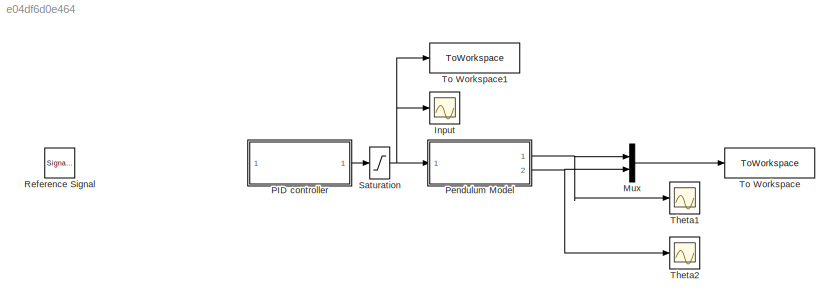
MODEL slx_e04df6d0e464
KIND model
CONFIG AbsTol = auto
CONFIG EnableMultiTasking = on
CONFIG FixedStep = 0.01
CONFIG MaxStep = auto
CONFIG MinStep = auto
CONFIG RelTol = 1e-3
CONFIG SampleTimeConstraint = Unconstrained
CONFIG SolverName = ode45
CONFIG StartTime = 0.0
CONFIG StopTime = 10
BLOCK [Scope] Input
  Floating = off
  NumInputPorts = 1
  Ports = [1]
  ScopeSpecificationString = Simulink.scopes.TimeScopeBlockCfg('CurrentConfiguration', extmgr.ConfigurationSet(extmgr.Configuration('Core','General UI',true),extmgr.Configuration('Core','Source UI',true),extmgr.Configuration('Sources','WiredSimulink',true,'DataLoggingSaveFormat','StructureWithTime','DataLoggingDecimation','1','DataLoggingDecimateData',true),extmgr.Configuration('Visuals','Time Domain',true,'SerializedDisplays...<+1642ch>
BLOCK [Mux] Mux
  DisplayOption = bar
  Inputs = 2
  Ports = [2, 1]
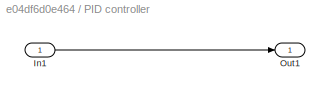
BLOCK [SubSystem] PID controller
  Ports = [1, 1]
  RequestExecContextInheritance = off
BLOCK [Inport] PID controller/In1
BLOCK [Outport] PID controller/Out1
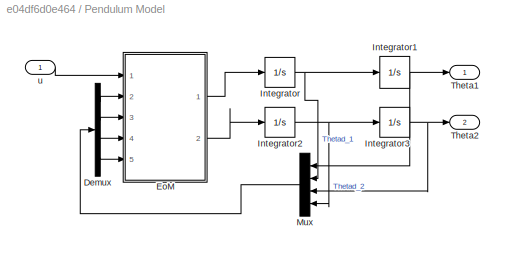
BLOCK [SubSystem] Pendulum Model
  Ports = [1, 2]
  RequestExecContextInheritance = off
BLOCK [Demux] Pendulum Model/Demux
  Ports = [1, 4]
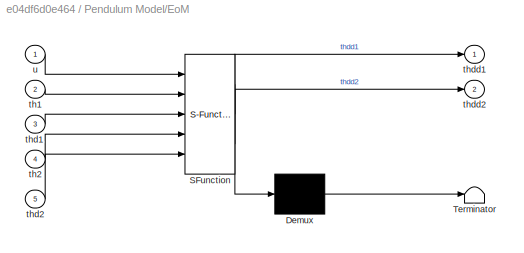
BLOCK [SubSystem] Pendulum Model/EoM
  ErrorFcn = Stateflow.Translate.translate
  PermitHierarchicalResolution = ExplicitOnly
  Ports = [5, 2]
  RequestExecContextInheritance = off
  SFBlockType = MATLAB Function
  TreatAsAtomicUnit = on
BLOCK [Demux] Pendulum Model/EoM/ Demux 
  Outputs = 1
  Ports = [1, 1]
BLOCK [S-Function] Pendulum Model/EoM/ SFunction 
  EnableBusSupport = on
  FunctionName = sf_sfun
  Parameters = model_par
  PortCounts = [5 3]
  Ports = [5, 3]
  SFcnIsStateOwnerBlock = off
  SFunctionDeploymentMode = off
  Tag = Stateflow S-Function 2
BLOCK [Terminator] Pendulum Model/EoM/ Terminator 
BLOCK [Inport] Pendulum Model/EoM/th1
  Port = 2
BLOCK [Inport] Pendulum Model/EoM/th2
  Port = 4
BLOCK [Inport] Pendulum Model/EoM/thd1
  Port = 3
BLOCK [Inport] Pendulum Model/EoM/thd2
  Port = 5
BLOCK [Outport] Pendulum Model/EoM/thdd1
BLOCK [Outport] Pendulum Model/EoM/thdd2
  Port = 2
BLOCK [Inport] Pendulum Model/EoM/u
BLOCK [Integrator] Pendulum Model/Integrator
  ContinuousStateAttributes = 'Theta1'
  InitialCondition = Thetad1_0
  Ports = [1, 1]
BLOCK [Integrator] Pendulum Model/Integrator1
  ContinuousStateAttributes = 'Theta1'
  InitialCondition = Theta1_0
  Ports = [1, 1]
BLOCK [Integrator] Pendulum Model/Integrator2
  ContinuousStateAttributes = 'Theta1'
  InitialCondition = Thetad2_0
  Ports = [1, 1]
BLOCK [Integrator] Pendulum Model/Integrator3
  ContinuousStateAttributes = 'Theta1'
  InitialCondition = Theta2_0
  Ports = [1, 1]
BLOCK [Mux] Pendulum Model/Mux
  DisplayOption = bar
  Ports = [4, 1]
BLOCK [Outport] Pendulum Model/Theta1
BLOCK [Outport] Pendulum Model/Theta2
  Port = 2
BLOCK [Inport] Pendulum Model/u
BLOCK [SignalGenerator] Reference Signal
  Amplitude = 0.5
  Frequency = 5
  Ports = [0, 1]
BLOCK [Saturate] Saturation
  LowerLimit = -1
  UpperLimit = 1
BLOCK [Scope] Theta1
  Floating = off
  NumInputPorts = 1
  Ports = [1]
  ScopeSpecificationString = Simulink.scopes.TimeScopeBlockCfg('CurrentConfiguration', extmgr.ConfigurationSet(extmgr.Configuration('Core','General UI',true),extmgr.Configuration('Core','Source UI',true),extmgr.Configuration('Sources','WiredSimulink',true,'DataLoggingVariableName','ScopeData1','DataLoggingSaveFormat','StructureWithTime','DataLoggingDecimation','1','DataLoggingDecimateData',true),extmgr.Configuration('Visuals'...<+1724ch>
BLOCK [Scope] Theta2
  Floating = off
  NumInputPorts = 1
  Ports = [1]
  ScopeSpecificationString = Simulink.scopes.TimeScopeBlockCfg('CurrentConfiguration', extmgr.ConfigurationSet(extmgr.Configuration('Core','General UI',true),extmgr.Configuration('Core','Source UI',true),extmgr.Configuration('Sources','WiredSimulink',true,'DataLoggingVariableName','ScopeData2','DataLoggingSaveFormat','StructureWithTime','DataLoggingDecimation','1','DataLoggingDecimateData',true),extmgr.Configuration('Visuals'...<+1701ch>
BLOCK [ToWorkspace] To Workspace
  FixptAsFi = on
  MaxDataPoints = inf
  Ports = [1]
  SampleTime = -1
  SaveFormat = Timeseries
  VariableName = angles_raw
BLOCK [ToWorkspace] To Workspace1
  FixptAsFi = on
  MaxDataPoints = inf
  Ports = [1]
  SampleTime = -1
  SaveFormat = Timeseries
  VariableName = Input
LINE Mux:1 -> To Workspace:1
LINE PID controller/In1:1 -> PID controller/Out1:1
LINE PID controller:1 -> Saturation:1
LINE Pendulum Model/Demux:1 -> Pendulum Model/EoM:2
LINE Pendulum Model/Demux:2 -> Pendulum Model/EoM:3
LINE Pendulum Model/Demux:3 -> Pendulum Model/EoM:4
LINE Pendulum Model/Demux:4 -> Pendulum Model/EoM:5
LINE Pendulum Model/EoM:1 -> Pendulum Model/Integrator:1
LINE Pendulum Model/EoM:2 -> Pendulum Model/Integrator2:1
NET Pendulum Model/Integrator1:1 -> Pendulum Model/Mux:1, Pendulum Model/Theta1:1
NET Pendulum Model/Integrator2:1 -> Pendulum Model/Integrator3:1, Pendulum Model/Mux:4
NET Pendulum Model/Integrator3:1 -> Pendulum Model/Mux:3, Pendulum Model/Theta2:1
NET Pendulum Model/Integrator:1 -> Pendulum Model/Integrator1:1, Pendulum Model/Mux:2
LINE Pendulum Model/Mux:1 -> Pendulum Model/Demux:1
LINE Pendulum Model/u:1 -> Pendulum Model/EoM:1
NET Pendulum Model:1 -> Mux:1, Theta1:1
NET Pendulum Model:2 -> Mux:2, Theta2:1
NET Saturation:1 -> Input:1, Pendulum Model:1, To Workspace1:1
note: NET lines group one-source signal fan-out (src -> all destinations, sorted); 1:1 wires keep LINE
CHART Pendulum Model/EoM states=1 transitions=1
  STATE_LABEL 'eML_blk_kernel()'
  STATE_LABEL 'SCRIPT:\nfunction [thdd1, thdd2] = fcn(u, th1, thd1, th2, thd2, model_par)\nthdd1 = 0;\nthdd2 = -(model_par.b*thd2 + model_par.c2*model_par.g*model_par.m2*sin(th2))/(model_par.m2*model_par.c2^2 + model_par.J2);\n'
CHART  states=0 transitions=0
